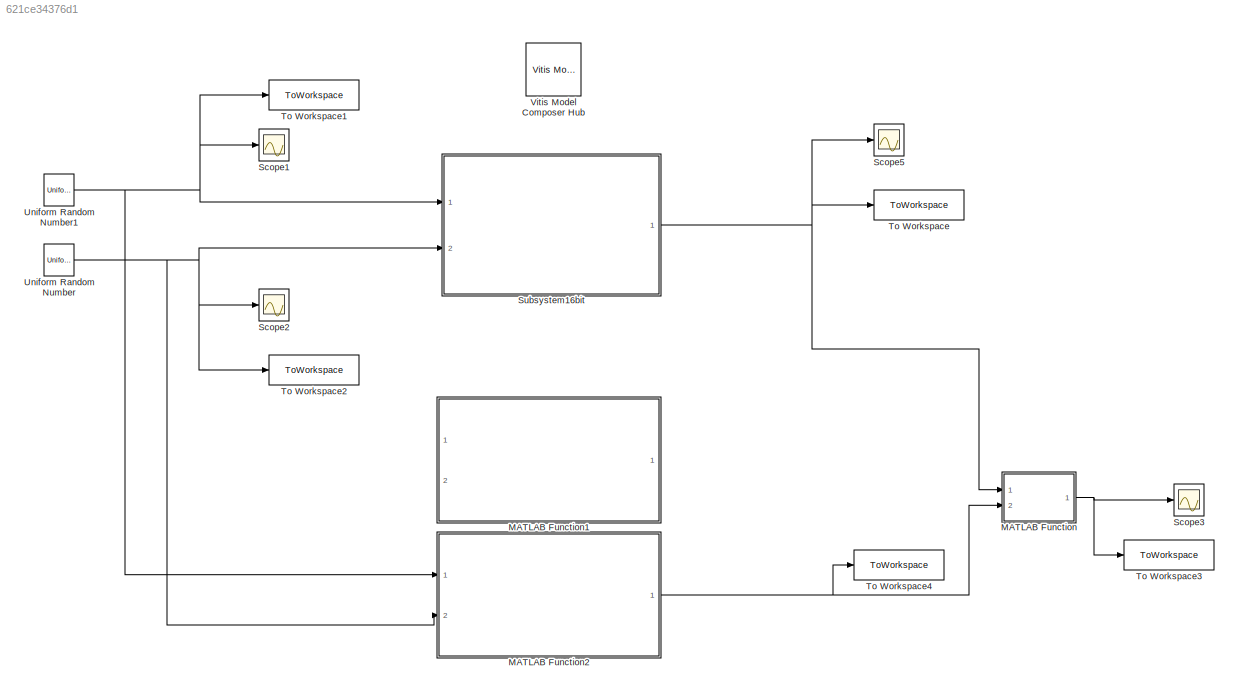
MODEL slx_621ce34376d1
KIND model
CONFIG AbsTol = auto
CONFIG EnableMultiTasking = off
CONFIG FixedStep = auto
CONFIG MaxStep = auto
CONFIG MinStep = auto
CONFIG RelTol = 1e-3
CONFIG SampleTimeConstraint = Unconstrained
CONFIG SolverName = VariableStepAuto
CONFIG StartTime = 0.0
CONFIG StopTime = 99
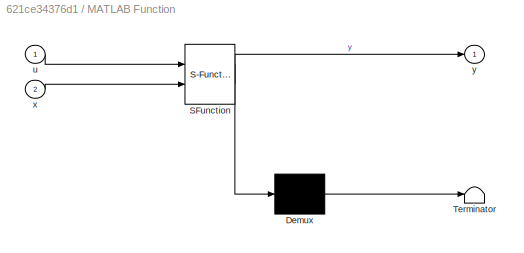
BLOCK [SubSystem] MATLAB Function
  ErrorFcn = Stateflow.Translate.translate
  PermitHierarchicalResolution = ExplicitOnly
  Ports = [2, 1]
  RequestExecContextInheritance = off
  SFBlockType = MATLAB Function
  TreatAsAtomicUnit = on
BLOCK [Demux] MATLAB Function/ Demux 
  Outputs = 1
  Ports = [1, 1]
BLOCK [S-Function] MATLAB Function/ SFunction 
  EnableBusSupport = on
  FunctionName = sf_sfun
  PortCounts = [2 2]
  Ports = [2, 2]
  SFcnIsStateOwnerBlock = off
  SFunctionDeploymentMode = off
  Tag = Stateflow S-Function 2
BLOCK [Terminator] MATLAB Function/ Terminator 
BLOCK [Inport] MATLAB Function/u
BLOCK [Inport] MATLAB Function/x
  Port = 2
BLOCK [Outport] MATLAB Function/y
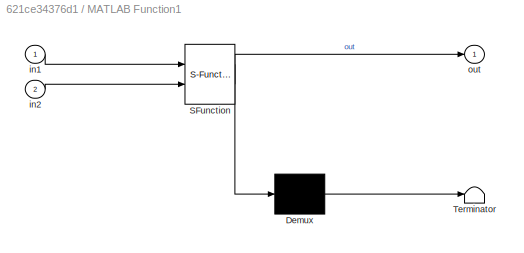
BLOCK [SubSystem] MATLAB Function1
  Commented = on
  ErrorFcn = Stateflow.Translate.translate
  PermitHierarchicalResolution = ExplicitOnly
  Ports = [2, 1]
  RequestExecContextInheritance = off
  SFBlockType = MATLAB Function
  TreatAsAtomicUnit = on
BLOCK [Demux] MATLAB Function1/ Demux 
  Outputs = 1
  Ports = [1, 1]
BLOCK [S-Function] MATLAB Function1/ SFunction 
  EnableBusSupport = on
  FunctionName = sf_sfun
  PortCounts = [2 2]
  Ports = [2, 2]
  SFcnIsStateOwnerBlock = off
  SFunctionDeploymentMode = off
  Tag = Stateflow S-Function 1
BLOCK [Terminator] MATLAB Function1/ Terminator 
BLOCK [Inport] MATLAB Function1/in1
BLOCK [Inport] MATLAB Function1/in2
  Port = 2
BLOCK [Outport] MATLAB Function1/out
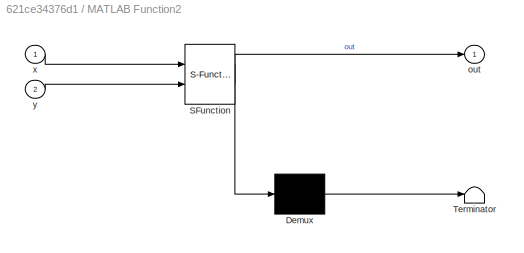
BLOCK [SubSystem] MATLAB Function2
  ErrorFcn = Stateflow.Translate.translate
  PermitHierarchicalResolution = ExplicitOnly
  Ports = [2, 1]
  RequestExecContextInheritance = off
  SFBlockType = MATLAB Function
  TreatAsAtomicUnit = on
BLOCK [Demux] MATLAB Function2/ Demux 
  Outputs = 1
  Ports = [1, 1]
BLOCK [S-Function] MATLAB Function2/ SFunction 
  EnableBusSupport = on
  FunctionName = sf_sfun
  PortCounts = [2 2]
  Ports = [2, 2]
  SFcnIsStateOwnerBlock = off
  SFunctionDeploymentMode = off
  Tag = Stateflow S-Function 3
BLOCK [Terminator] MATLAB Function2/ Terminator 
BLOCK [Outport] MATLAB Function2/out
BLOCK [Inport] MATLAB Function2/x
BLOCK [Inport] MATLAB Function2/y
  Port = 2
BLOCK [Scope] Scope1
  Floating = off
  NumInputPorts = 1
  Ports = [1]
  ScopeSpecificationString = Simulink.scopes.TimeScopeBlockCfg('CurrentConfiguration', extmgr.ConfigurationSet(extmgr.Configuration('Core','General UI',true),extmgr.Configuration('Core','Source UI',true),extmgr.Configuration('Sources','WiredSimulink',true,'DataLoggingVariableName','ScopeData1'),extmgr.Configuration('Visuals','Time Domain',true,'SerializedDisplays',{struct('MinYLimReal','-1.24415','MaxYLimReal','1.23259','YLab...<+1488ch>
BLOCK [Scope] Scope2
  Floating = off
  NumInputPorts = 1
  Ports = [1]
  ScopeSpecificationString = Simulink.scopes.TimeScopeBlockCfg('CurrentConfiguration', extmgr.ConfigurationSet(extmgr.Configuration('Core','General UI',true),extmgr.Configuration('Core','Source UI',true),extmgr.Configuration('Sources','WiredSimulink',true),extmgr.Configuration('Visuals','Time Domain',true,'SerializedDisplays',{struct('MinYLimReal','-1.24312','MaxYLimReal','1.24803','YLabelReal','','MinYLimMag','0.00000','MaxY...<+1411ch>
BLOCK [Scope] Scope3
  Floating = off
  NumInputPorts = 1
  Ports = [1]
  ScopeSpecificationString = Simulink.scopes.TimeScopeBlockCfg('CurrentConfiguration', extmgr.ConfigurationSet(extmgr.Configuration('Core','General UI',true),extmgr.Configuration('Core','Source UI',true),extmgr.Configuration('Sources','WiredSimulink',true,'DataLoggingVariableName','ScopeData2'),extmgr.Configuration('Visuals','Time Domain',true,'SerializedDisplays',{struct('MinYLimReal','-0.01042','MaxYLimReal','0.09375','YLab...<+1447ch>
BLOCK [Scope] Scope5
  Floating = off
  NumInputPorts = 1
  Ports = [1]
  ScopeSpecificationString = Simulink.scopes.TimeScopeBlockCfg('CurrentConfiguration', extmgr.ConfigurationSet(extmgr.Configuration('Core','General UI',true),extmgr.Configuration('Core','Source UI',true),extmgr.Configuration('Sources','WiredSimulink',true,'DataLoggingVariableName','ScopeData4'),extmgr.Configuration('Visuals','Time Domain',true,'SerializedDisplays',{struct('MinYLimReal','-0.12011','MaxYLimReal','1.09863','YLab...<+1480ch>
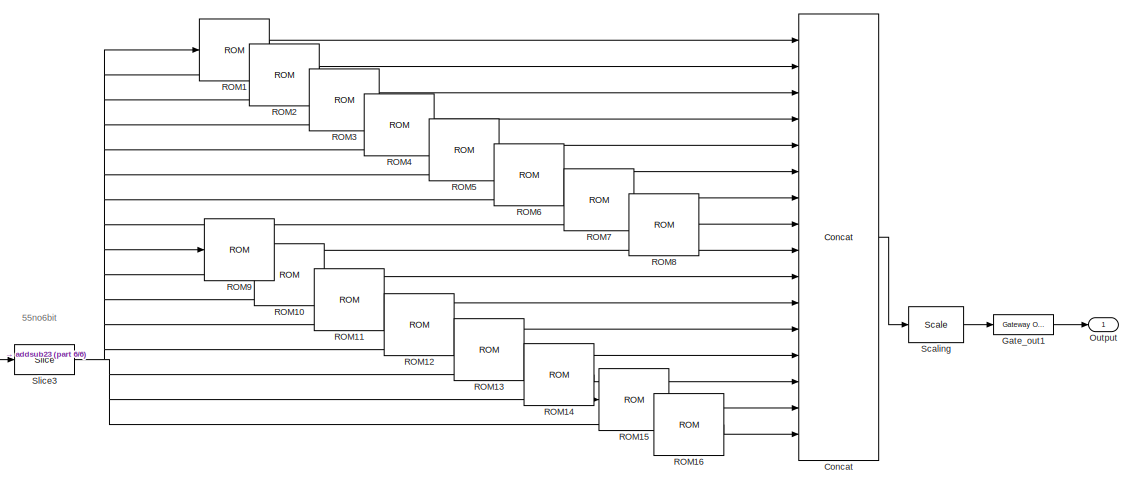
[diagram: Subsystem16bit - part 1/6, top right region]
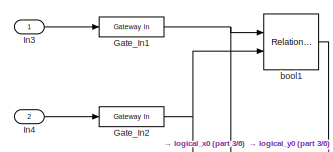
[diagram: Subsystem16bit - part 2/6, top left region]
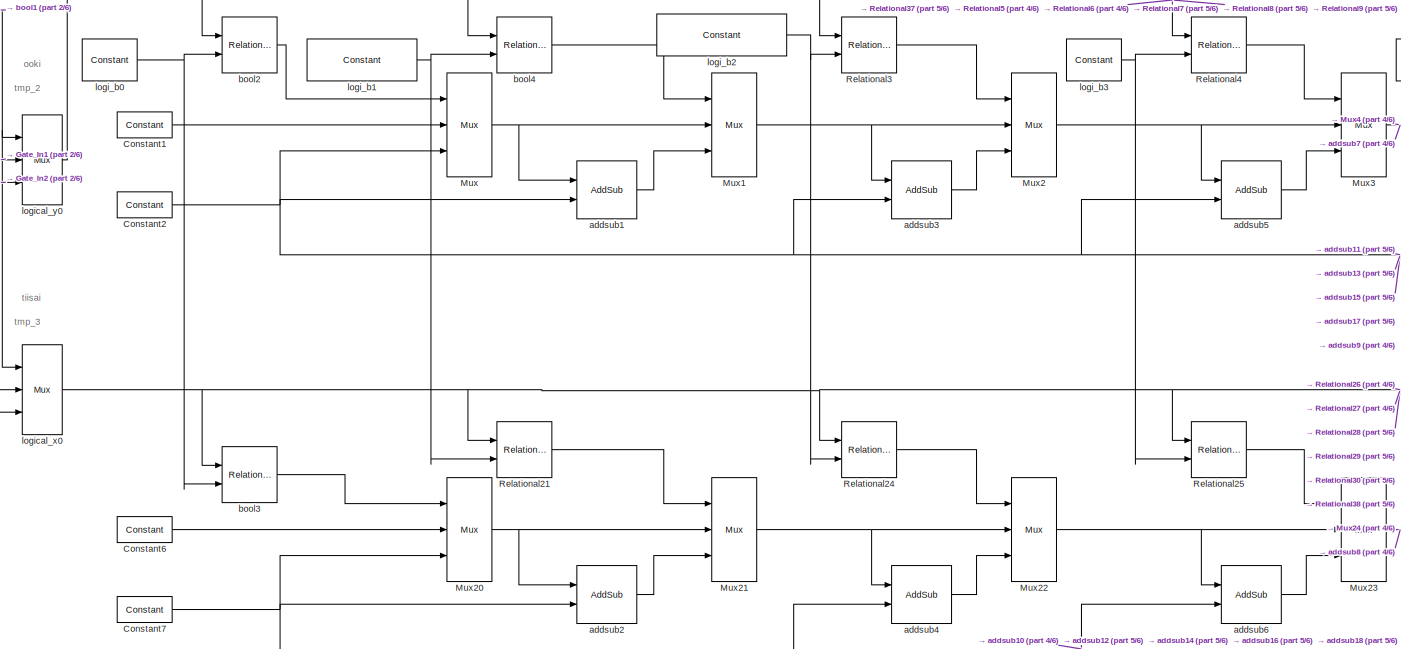
[diagram: Subsystem16bit - part 3/6, left side, full height]
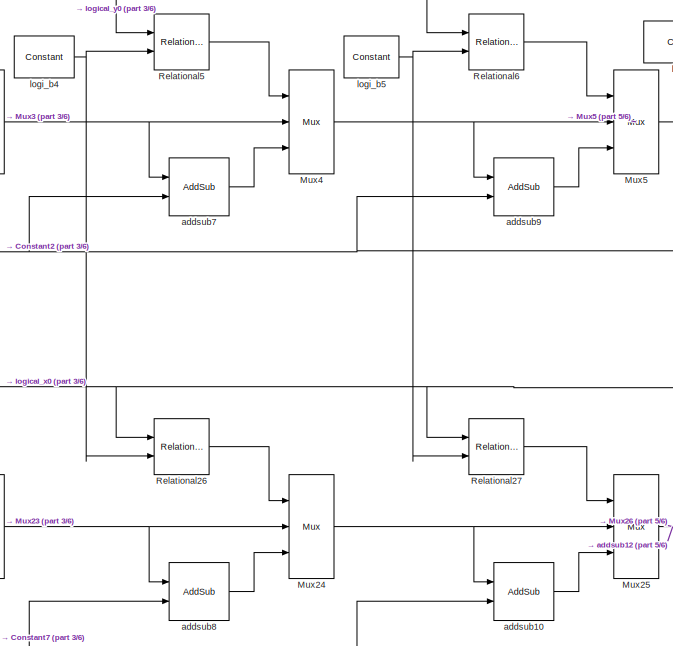
[diagram: Subsystem16bit - part 4/6, middle left region]
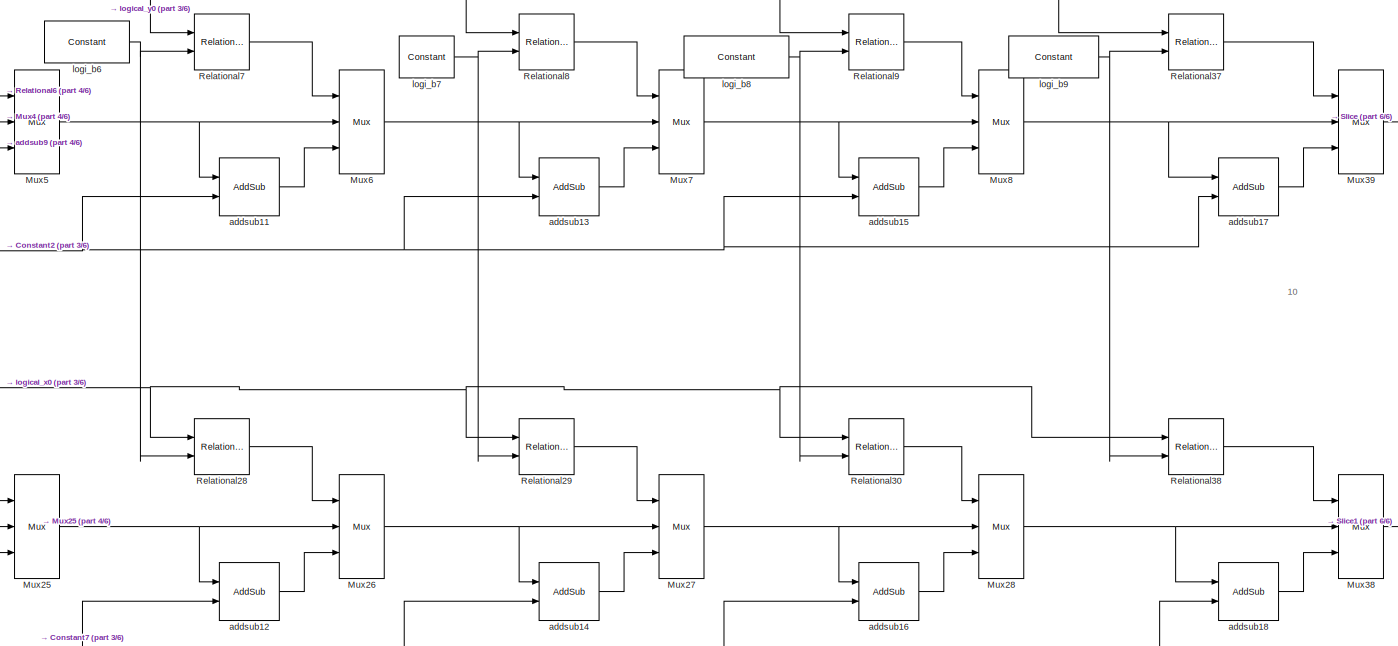
[diagram: Subsystem16bit - part 5/6, central region]
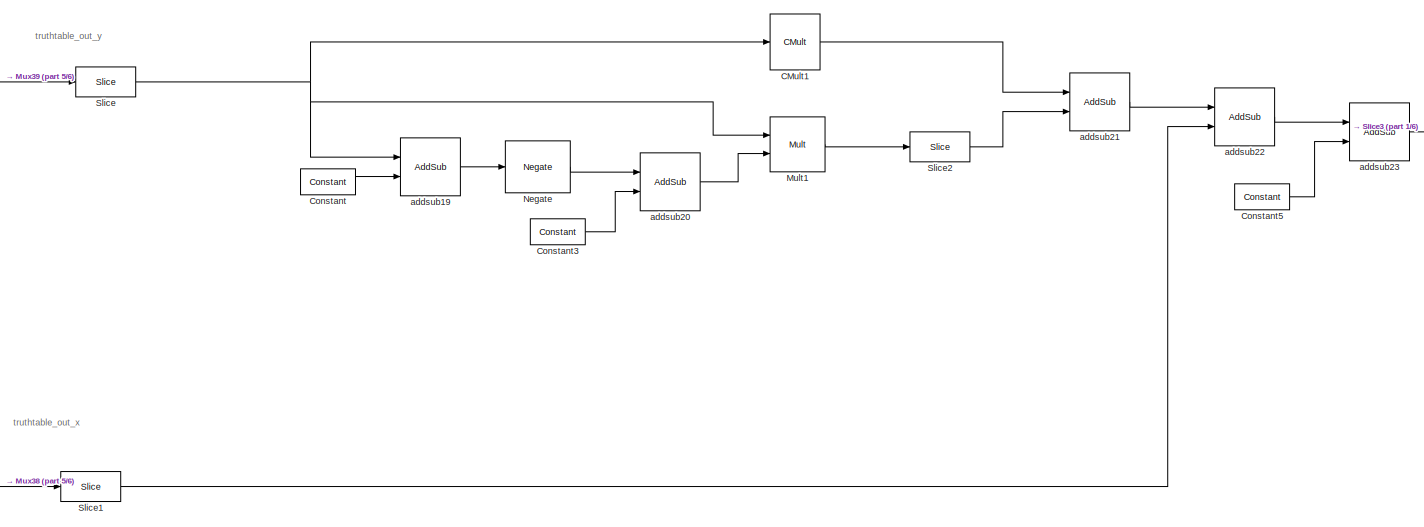
[diagram: Subsystem16bit - part 6/6, middle right region]
BLOCK [SubSystem] Subsystem16bit
  Ports = [2, 1]
  RequestExecContextInheritance = off
BLOCK [Reference] Subsystem16bit/CMult1  REF=hdlBasic/CMult
  Ports = [1, 1]
  SourceBlock = hdlBasic/CMult
  SourceType = Constant Multiplier Block
BLOCK [Reference] Subsystem16bit/Concat  REF=hdlBasic/Concat
  Ports = [16, 1]
  SourceBlock = hdlBasic/Concat
  SourceType = Bus Concatenator Block
BLOCK [Reference] Subsystem16bit/Constant  REF=hdlBasic/Constant
  Ports = [0, 1]
  SourceBlock = hdlBasic/Constant
  SourceType = Constant Block Block
BLOCK [Reference] Subsystem16bit/Constant1  REF=hdlBasic/Constant
  Ports = [0, 1]
  SourceBlock = hdlBasic/Constant
  SourceType = Constant Block Block
BLOCK [Reference] Subsystem16bit/Constant2  REF=hdlBasic/Constant
  Ports = [0, 1]
  SourceBlock = hdlBasic/Constant
  SourceType = Constant Block Block
BLOCK [Reference] Subsystem16bit/Constant3  REF=hdlBasic/Constant
  Ports = [0, 1]
  SourceBlock = hdlBasic/Constant
  SourceType = Constant Block Block
BLOCK [Reference] Subsystem16bit/Constant5  REF=hdlBasic/Constant
  Ports = [0, 1]
  SourceBlock = hdlBasic/Constant
  SourceType = Constant Block Block
BLOCK [Reference] Subsystem16bit/Constant6  REF=hdlBasic/Constant
  Ports = [0, 1]
  SourceBlock = hdlBasic/Constant
  SourceType = Constant Block Block
BLOCK [Reference] Subsystem16bit/Constant7  REF=hdlBasic/Constant
  Ports = [0, 1]
  SourceBlock = hdlBasic/Constant
  SourceType = Constant Block Block
BLOCK [Reference] Subsystem16bit/Gate_In1  REF=hdlBasic/Gateway In
  Ports = [1, 1]
  SourceBlock = hdlBasic/Gateway In
  SourceType = Gateway In Block
BLOCK [Reference] Subsystem16bit/Gate_In2  REF=hdlBasic/Gateway In
  Ports = [1, 1]
  SourceBlock = hdlBasic/Gateway In
  SourceType = Gateway In Block
BLOCK [Reference] Subsystem16bit/Gate_out1  REF=hdlBasic/Gateway Out
  Ports = [1, 1]
  SourceBlock = hdlBasic/Gateway Out
  SourceType = Gateway Out Block
BLOCK [Inport] Subsystem16bit/In3
BLOCK [Inport] Subsystem16bit/In4
  Port = 2
BLOCK [Reference] Subsystem16bit/Mult1  REF=hdlBasic/Mult
  Ports = [2, 1]
  SourceBlock = hdlBasic/Mult
  SourceType = Multiplier Block
BLOCK [Reference] Subsystem16bit/Mux  REF=hdlBasic/Mux
  Ports = [3, 1]
  SourceBlock = hdlBasic/Mux
  SourceType = Bus Multiplexer Block
BLOCK [Reference] Subsystem16bit/Mux1  REF=hdlBasic/Mux
  Ports = [3, 1]
  SourceBlock = hdlBasic/Mux
  SourceType = Bus Multiplexer Block
BLOCK [Reference] Subsystem16bit/Mux2  REF=hdlBasic/Mux
  Ports = [3, 1]
  SourceBlock = hdlBasic/Mux
  SourceType = Bus Multiplexer Block
BLOCK [Reference] Subsystem16bit/Mux20  REF=hdlBasic/Mux
  Ports = [3, 1]
  SourceBlock = hdlBasic/Mux
  SourceType = Bus Multiplexer Block
BLOCK [Reference] Subsystem16bit/Mux21  REF=hdlBasic/Mux
  Ports = [3, 1]
  SourceBlock = hdlBasic/Mux
  SourceType = Bus Multiplexer Block
BLOCK [Reference] Subsystem16bit/Mux22  REF=hdlBasic/Mux
  Ports = [3, 1]
  SourceBlock = hdlBasic/Mux
  SourceType = Bus Multiplexer Block
BLOCK [Reference] Subsystem16bit/Mux23  REF=hdlBasic/Mux
  Ports = [3, 1]
  SourceBlock = hdlBasic/Mux
  SourceType = Bus Multiplexer Block
BLOCK [Reference] Subsystem16bit/Mux24  REF=hdlBasic/Mux
  Ports = [3, 1]
  SourceBlock = hdlBasic/Mux
  SourceType = Bus Multiplexer Block
BLOCK [Reference] Subsystem16bit/Mux25  REF=hdlBasic/Mux
  Ports = [3, 1]
  SourceBlock = hdlBasic/Mux
  SourceType = Bus Multiplexer Block
BLOCK [Reference] Subsystem16bit/Mux26  REF=hdlBasic/Mux
  Ports = [3, 1]
  SourceBlock = hdlBasic/Mux
  SourceType = Bus Multiplexer Block
BLOCK [Reference] Subsystem16bit/Mux27  REF=hdlBasic/Mux
  Ports = [3, 1]
  SourceBlock = hdlBasic/Mux
  SourceType = Bus Multiplexer Block
BLOCK [Reference] Subsystem16bit/Mux28  REF=hdlBasic/Mux
  Ports = [3, 1]
  SourceBlock = hdlBasic/Mux
  SourceType = Bus Multiplexer Block
BLOCK [Reference] Subsystem16bit/Mux3  REF=hdlBasic/Mux
  Ports = [3, 1]
  SourceBlock = hdlBasic/Mux
  SourceType = Bus Multiplexer Block
BLOCK [Reference] Subsystem16bit/Mux38  REF=hdlBasic/Mux
  Ports = [3, 1]
  SourceBlock = hdlBasic/Mux
  SourceType = Bus Multiplexer Block
BLOCK [Reference] Subsystem16bit/Mux39  REF=hdlBasic/Mux
  Ports = [3, 1]
  SourceBlock = hdlBasic/Mux
  SourceType = Bus Multiplexer Block
BLOCK [Reference] Subsystem16bit/Mux4  REF=hdlBasic/Mux
  Ports = [3, 1]
  SourceBlock = hdlBasic/Mux
  SourceType = Bus Multiplexer Block
BLOCK [Reference] Subsystem16bit/Mux5  REF=hdlBasic/Mux
  Ports = [3, 1]
  SourceBlock = hdlBasic/Mux
  SourceType = Bus Multiplexer Block
BLOCK [Reference] Subsystem16bit/Mux6  REF=hdlBasic/Mux
  Ports = [3, 1]
  SourceBlock = hdlBasic/Mux
  SourceType = Bus Multiplexer Block
BLOCK [Reference] Subsystem16bit/Mux7  REF=hdlBasic/Mux
  Ports = [3, 1]
  SourceBlock = hdlBasic/Mux
  SourceType = Bus Multiplexer Block
BLOCK [Reference] Subsystem16bit/Mux8  REF=hdlBasic/Mux
  Ports = [3, 1]
  SourceBlock = hdlBasic/Mux
  SourceType = Bus Multiplexer Block
BLOCK [Reference] Subsystem16bit/Negate  REF=hdlBasic/Negate
  Ports = [1, 1]
  SourceBlock = hdlBasic/Negate
  SourceType = Negate Block Block
BLOCK [Outport] Subsystem16bit/Output
BLOCK [Reference] Subsystem16bit/ROM1  REF=hdlBasic/ROM
  Ports = [1, 1]
  SourceBlock = hdlBasic/ROM
  SourceType = Single Port Read-Only Memory Block
BLOCK [Reference] Subsystem16bit/ROM10  REF=hdlBasic/ROM
  Ports = [1, 1]
  SourceBlock = hdlBasic/ROM
  SourceType = Single Port Read-Only Memory Block
BLOCK [Reference] Subsystem16bit/ROM11  REF=hdlBasic/ROM
  Ports = [1, 1]
  SourceBlock = hdlBasic/ROM
  SourceType = Single Port Read-Only Memory Block
BLOCK [Reference] Subsystem16bit/ROM12  REF=hdlBasic/ROM
  Ports = [1, 1]
  SourceBlock = hdlBasic/ROM
  SourceType = Single Port Read-Only Memory Block
BLOCK [Reference] Subsystem16bit/ROM13  REF=hdlBasic/ROM
  Ports = [1, 1]
  SourceBlock = hdlBasic/ROM
  SourceType = Single Port Read-Only Memory Block
BLOCK [Reference] Subsystem16bit/ROM14  REF=hdlBasic/ROM
  Ports = [1, 1]
  SourceBlock = hdlBasic/ROM
  SourceType = Single Port Read-Only Memory Block
BLOCK [Reference] Subsystem16bit/ROM15  REF=hdlBasic/ROM
  Ports = [1, 1]
  SourceBlock = hdlBasic/ROM
  SourceType = Single Port Read-Only Memory Block
BLOCK [Reference] Subsystem16bit/ROM16  REF=hdlBasic/ROM
  Ports = [1, 1]
  SourceBlock = hdlBasic/ROM
  SourceType = Single Port Read-Only Memory Block
BLOCK [Reference] Subsystem16bit/ROM2  REF=hdlBasic/ROM
  Ports = [1, 1]
  SourceBlock = hdlBasic/ROM
  SourceType = Single Port Read-Only Memory Block
BLOCK [Reference] Subsystem16bit/ROM3  REF=hdlBasic/ROM
  Ports = [1, 1]
  SourceBlock = hdlBasic/ROM
  SourceType = Single Port Read-Only Memory Block
BLOCK [Reference] Subsystem16bit/ROM4  REF=hdlBasic/ROM
  Ports = [1, 1]
  SourceBlock = hdlBasic/ROM
  SourceType = Single Port Read-Only Memory Block
BLOCK [Reference] Subsystem16bit/ROM5  REF=hdlBasic/ROM
  Ports = [1, 1]
  SourceBlock = hdlBasic/ROM
  SourceType = Single Port Read-Only Memory Block
BLOCK [Reference] Subsystem16bit/ROM6  REF=hdlBasic/ROM
  Ports = [1, 1]
  SourceBlock = hdlBasic/ROM
  SourceType = Single Port Read-Only Memory Block
BLOCK [Reference] Subsystem16bit/ROM7  REF=hdlBasic/ROM
  Ports = [1, 1]
  SourceBlock = hdlBasic/ROM
  SourceType = Single Port Read-Only Memory Block
BLOCK [Reference] Subsystem16bit/ROM8  REF=hdlBasic/ROM
  Ports = [1, 1]
  SourceBlock = hdlBasic/ROM
  SourceType = Single Port Read-Only Memory Block
BLOCK [Reference] Subsystem16bit/ROM9  REF=hdlBasic/ROM
  Ports = [1, 1]
  SourceBlock = hdlBasic/ROM
  SourceType = Single Port Read-Only Memory Block
BLOCK [Reference] Subsystem16bit/Relational21  REF=hdlBasic/Relational
  Ports = [2, 1]
  SourceBlock = hdlBasic/Relational
  SourceType = Arithmetic Relational Operator Block
BLOCK [Reference] Subsystem16bit/Relational24  REF=hdlBasic/Relational
  Ports = [2, 1]
  SourceBlock = hdlBasic/Relational
  SourceType = Arithmetic Relational Operator Block
BLOCK [Reference] Subsystem16bit/Relational25  REF=hdlBasic/Relational
  Ports = [2, 1]
  SourceBlock = hdlBasic/Relational
  SourceType = Arithmetic Relational Operator Block
BLOCK [Reference] Subsystem16bit/Relational26  REF=hdlBasic/Relational
  Ports = [2, 1]
  SourceBlock = hdlBasic/Relational
  SourceType = Arithmetic Relational Operator Block
BLOCK [Reference] Subsystem16bit/Relational27  REF=hdlBasic/Relational
  Ports = [2, 1]
  SourceBlock = hdlBasic/Relational
  SourceType = Arithmetic Relational Operator Block
BLOCK [Reference] Subsystem16bit/Relational28  REF=hdlBasic/Relational
  Ports = [2, 1]
  SourceBlock = hdlBasic/Relational
  SourceType = Arithmetic Relational Operator Block
BLOCK [Reference] Subsystem16bit/Relational29  REF=hdlBasic/Relational
  Ports = [2, 1]
  SourceBlock = hdlBasic/Relational
  SourceType = Arithmetic Relational Operator Block
BLOCK [Reference] Subsystem16bit/Relational3  REF=hdlBasic/Relational
  Ports = [2, 1]
  SourceBlock = hdlBasic/Relational
  SourceType = Arithmetic Relational Operator Block
BLOCK [Reference] Subsystem16bit/Relational30  REF=hdlBasic/Relational
  Ports = [2, 1]
  SourceBlock = hdlBasic/Relational
  SourceType = Arithmetic Relational Operator Block
BLOCK [Reference] Subsystem16bit/Relational37  REF=hdlBasic/Relational
  Ports = [2, 1]
  SourceBlock = hdlBasic/Relational
  SourceType = Arithmetic Relational Operator Block
BLOCK [Reference] Subsystem16bit/Relational38  REF=hdlBasic/Relational
  Ports = [2, 1]
  SourceBlock = hdlBasic/Relational
  SourceType = Arithmetic Relational Operator Block
BLOCK [Reference] Subsystem16bit/Relational4  REF=hdlBasic/Relational
  Ports = [2, 1]
  SourceBlock = hdlBasic/Relational
  SourceType = Arithmetic Relational Operator Block
BLOCK [Reference] Subsystem16bit/Relational5  REF=hdlBasic/Relational
  Ports = [2, 1]
  SourceBlock = hdlBasic/Relational
  SourceType = Arithmetic Relational Operator Block
BLOCK [Reference] Subsystem16bit/Relational6  REF=hdlBasic/Relational
  Ports = [2, 1]
  SourceBlock = hdlBasic/Relational
  SourceType = Arithmetic Relational Operator Block
BLOCK [Reference] Subsystem16bit/Relational7  REF=hdlBasic/Relational
  Ports = [2, 1]
  SourceBlock = hdlBasic/Relational
  SourceType = Arithmetic Relational Operator Block
BLOCK [Reference] Subsystem16bit/Relational8  REF=hdlBasic/Relational
  Ports = [2, 1]
  SourceBlock = hdlBasic/Relational
  SourceType = Arithmetic Relational Operator Block
BLOCK [Reference] Subsystem16bit/Relational9  REF=hdlBasic/Relational
  Ports = [2, 1]
  SourceBlock = hdlBasic/Relational
  SourceType = Arithmetic Relational Operator Block
BLOCK [Reference] Subsystem16bit/Scaling  REF=hdlBasic/Scale
  Ports = [1, 1]
  SourceBlock = hdlBasic/Scale
  SourceType = Input Scaler Block
BLOCK [Reference] Subsystem16bit/Slice  REF=hdlBasic/Slice
  Ports = [1, 1]
  SourceBlock = hdlBasic/Slice
  SourceType = Bit Slice Extractor Block
BLOCK [Reference] Subsystem16bit/Slice1  REF=hdlBasic/Slice
  Ports = [1, 1]
  SourceBlock = hdlBasic/Slice
  SourceType = Bit Slice Extractor Block
BLOCK [Reference] Subsystem16bit/Slice2  REF=hdlBasic/Slice
  Ports = [1, 1]
  SourceBlock = hdlBasic/Slice
  SourceType = Bit Slice Extractor Block
BLOCK [Reference] Subsystem16bit/Slice3  REF=hdlBasic/Slice
  Ports = [1, 1]
  SourceBlock = hdlBasic/Slice
  SourceType = Bit Slice Extractor Block
BLOCK [Reference] Subsystem16bit/addsub1  REF=hdlBasic/AddSub
  Ports = [2, 1]
  SourceBlock = hdlBasic/AddSub
  SourceType = Adder/Subtracter Block
BLOCK [Reference] Subsystem16bit/addsub10  REF=hdlBasic/AddSub
  Ports = [2, 1]
  SourceBlock = hdlBasic/AddSub
  SourceType = Adder/Subtracter Block
BLOCK [Reference] Subsystem16bit/addsub11  REF=hdlBasic/AddSub
  Ports = [2, 1]
  SourceBlock = hdlBasic/AddSub
  SourceType = Adder/Subtracter Block
BLOCK [Reference] Subsystem16bit/addsub12  REF=hdlBasic/AddSub
  Ports = [2, 1]
  SourceBlock = hdlBasic/AddSub
  SourceType = Adder/Subtracter Block
BLOCK [Reference] Subsystem16bit/addsub13  REF=hdlBasic/AddSub
  Ports = [2, 1]
  SourceBlock = hdlBasic/AddSub
  SourceType = Adder/Subtracter Block
BLOCK [Reference] Subsystem16bit/addsub14  REF=hdlBasic/AddSub
  Ports = [2, 1]
  SourceBlock = hdlBasic/AddSub
  SourceType = Adder/Subtracter Block
BLOCK [Reference] Subsystem16bit/addsub15  REF=hdlBasic/AddSub
  Ports = [2, 1]
  SourceBlock = hdlBasic/AddSub
  SourceType = Adder/Subtracter Block
BLOCK [Reference] Subsystem16bit/addsub16  REF=hdlBasic/AddSub
  Ports = [2, 1]
  SourceBlock = hdlBasic/AddSub
  SourceType = Adder/Subtracter Block
BLOCK [Reference] Subsystem16bit/addsub17  REF=hdlBasic/AddSub
  Ports = [2, 1]
  SourceBlock = hdlBasic/AddSub
  SourceType = Adder/Subtracter Block
BLOCK [Reference] Subsystem16bit/addsub18  REF=hdlBasic/AddSub
  Ports = [2, 1]
  SourceBlock = hdlBasic/AddSub
  SourceType = Adder/Subtracter Block
BLOCK [Reference] Subsystem16bit/addsub19  REF=hdlBasic/AddSub
  Ports = [2, 1]
  SourceBlock = hdlBasic/AddSub
  SourceType = Adder/Subtracter Block
BLOCK [Reference] Subsystem16bit/addsub2  REF=hdlBasic/AddSub
  Ports = [2, 1]
  SourceBlock = hdlBasic/AddSub
  SourceType = Adder/Subtracter Block
BLOCK [Reference] Subsystem16bit/addsub20  REF=hdlBasic/AddSub
  Ports = [2, 1]
  SourceBlock = hdlBasic/AddSub
  SourceType = Adder/Subtracter Block
BLOCK [Reference] Subsystem16bit/addsub21  REF=hdlBasic/AddSub
  Ports = [2, 1]
  SourceBlock = hdlBasic/AddSub
  SourceType = Adder/Subtracter Block
BLOCK [Reference] Subsystem16bit/addsub22  REF=hdlBasic/AddSub
  Ports = [2, 1]
  SourceBlock = hdlBasic/AddSub
  SourceType = Adder/Subtracter Block
BLOCK [Reference] Subsystem16bit/addsub23  REF=hdlBasic/AddSub
  Ports = [2, 1]
  SourceBlock = hdlBasic/AddSub
  SourceType = Adder/Subtracter Block
BLOCK [Reference] Subsystem16bit/addsub3  REF=hdlBasic/AddSub
  Ports = [2, 1]
  SourceBlock = hdlBasic/AddSub
  SourceType = Adder/Subtracter Block
BLOCK [Reference] Subsystem16bit/addsub4  REF=hdlBasic/AddSub
  Ports = [2, 1]
  SourceBlock = hdlBasic/AddSub
  SourceType = Adder/Subtracter Block
BLOCK [Reference] Subsystem16bit/addsub5  REF=hdlBasic/AddSub
  Ports = [2, 1]
  SourceBlock = hdlBasic/AddSub
  SourceType = Adder/Subtracter Block
BLOCK [Reference] Subsystem16bit/addsub6  REF=hdlBasic/AddSub
  Ports = [2, 1]
  SourceBlock = hdlBasic/AddSub
  SourceType = Adder/Subtracter Block
BLOCK [Reference] Subsystem16bit/addsub7  REF=hdlBasic/AddSub
  Ports = [2, 1]
  SourceBlock = hdlBasic/AddSub
  SourceType = Adder/Subtracter Block
BLOCK [Reference] Subsystem16bit/addsub8  REF=hdlBasic/AddSub
  Ports = [2, 1]
  SourceBlock = hdlBasic/AddSub
  SourceType = Adder/Subtracter Block
BLOCK [Reference] Subsystem16bit/addsub9  REF=hdlBasic/AddSub
  Ports = [2, 1]
  SourceBlock = hdlBasic/AddSub
  SourceType = Adder/Subtracter Block
BLOCK [Reference] Subsystem16bit/bool1  REF=hdlBasic/Relational
  Ports = [2, 1]
  SourceBlock = hdlBasic/Relational
  SourceType = Arithmetic Relational Operator Block
BLOCK [Reference] Subsystem16bit/bool2  REF=hdlBasic/Relational
  Ports = [2, 1]
  SourceBlock = hdlBasic/Relational
  SourceType = Arithmetic Relational Operator Block
BLOCK [Reference] Subsystem16bit/bool3  REF=hdlBasic/Relational
  Ports = [2, 1]
  SourceBlock = hdlBasic/Relational
  SourceType = Arithmetic Relational Operator Block
BLOCK [Reference] Subsystem16bit/bool4  REF=hdlBasic/Relational
  Ports = [2, 1]
  SourceBlock = hdlBasic/Relational
  SourceType = Arithmetic Relational Operator Block
BLOCK [Reference] Subsystem16bit/logi_b0  REF=hdlBasic/Constant
  Ports = [0, 1]
  SourceBlock = hdlBasic/Constant
  SourceType = Constant Block Block
BLOCK [Reference] Subsystem16bit/logi_b1  REF=hdlBasic/Constant
  Ports = [0, 1]
  SourceBlock = hdlBasic/Constant
  SourceType = Constant Block Block
BLOCK [Reference] Subsystem16bit/logi_b2  REF=hdlBasic/Constant
  Ports = [0, 1]
  SourceBlock = hdlBasic/Constant
  SourceType = Constant Block Block
BLOCK [Reference] Subsystem16bit/logi_b3  REF=hdlBasic/Constant
  Ports = [0, 1]
  SourceBlock = hdlBasic/Constant
  SourceType = Constant Block Block
BLOCK [Reference] Subsystem16bit/logi_b4  REF=hdlBasic/Constant
  Ports = [0, 1]
  SourceBlock = hdlBasic/Constant
  SourceType = Constant Block Block
BLOCK [Reference] Subsystem16bit/logi_b5  REF=hdlBasic/Constant
  Ports = [0, 1]
  SourceBlock = hdlBasic/Constant
  SourceType = Constant Block Block
BLOCK [Reference] Subsystem16bit/logi_b6  REF=hdlBasic/Constant
  Ports = [0, 1]
  SourceBlock = hdlBasic/Constant
  SourceType = Constant Block Block
BLOCK [Reference] Subsystem16bit/logi_b7  REF=hdlBasic/Constant
  Ports = [0, 1]
  SourceBlock = hdlBasic/Constant
  SourceType = Constant Block Block
BLOCK [Reference] Subsystem16bit/logi_b8  REF=hdlBasic/Constant
  Ports = [0, 1]
  SourceBlock = hdlBasic/Constant
  SourceType = Constant Block Block
BLOCK [Reference] Subsystem16bit/logi_b9  REF=hdlBasic/Constant
  Ports = [0, 1]
  SourceBlock = hdlBasic/Constant
  SourceType = Constant Block Block
BLOCK [Reference] Subsystem16bit/logical_x0  REF=hdlBasic/Mux
  Ports = [3, 1]
  SourceBlock = hdlBasic/Mux
  SourceType = Bus Multiplexer Block
BLOCK [Reference] Subsystem16bit/logical_y0  REF=hdlBasic/Mux
  Ports = [3, 1]
  SourceBlock = hdlBasic/Mux
  SourceType = Bus Multiplexer Block
BLOCK [ToWorkspace] To Workspace
  FixptAsFi = on
  MaxDataPoints = inf
  Ports = [1]
  SampleTime = 1
  SaveFormat = Structure With Time
  VariableName = outPCA
BLOCK [ToWorkspace] To Workspace1
  FixptAsFi = on
  MaxDataPoints = inf
  Ports = [1]
  SampleTime = -1
  SaveFormat = Structure With Time
  VariableName = IN1
BLOCK [ToWorkspace] To Workspace2
  FixptAsFi = on
  MaxDataPoints = inf
  Ports = [1]
  SampleTime = -1
  SaveFormat = Structure With Time
  VariableName = IN2
BLOCK [ToWorkspace] To Workspace3
  FixptAsFi = on
  MaxDataPoints = inf
  Ports = [1]
  SampleTime = 1
  SaveFormat = Structure With Time
  VariableName = mse
BLOCK [ToWorkspace] To Workspace4
  FixptAsFi = on
  MaxDataPoints = inf
  Ports = [1]
  SampleTime = 1
  SaveFormat = Structure With Time
  VariableName = outGOLD
BLOCK [UniformRandomNumber] Uniform Random Number
  Maximum = 0.9
  Minimum = -0.9
  SampleTime = 1
BLOCK [UniformRandomNumber] Uniform Random Number1
  Maximum = 0.9
  Minimum = -0.9
  SampleTime = 1
  Seed = 1
BLOCK [Reference] Vitis Model Composer Hub  REF=vmcUtilities/Vitis Model Composer Hub
  Ports = []
  SourceBlock = vmcUtilities/Vitis Model Composer Hub
  SourceType = Implementation
  Tag = genX
  UserDataPersistent = on
ANNOTATION Subsystem16bit: 55no6bit
ANNOTATION Subsystem16bit: 10
ANNOTATION Subsystem16bit: ooki
ANNOTATION Subsystem16bit: tiisai
ANNOTATION Subsystem16bit: tmp_2
ANNOTATION Subsystem16bit: tmp_3
ANNOTATION Subsystem16bit: truthtable_out_x
ANNOTATION Subsystem16bit: truthtable_out_y
NET MATLAB Function2:1 -> MATLAB Function:2, To Workspace4:1
NET MATLAB Function:1 -> Scope3:1, To Workspace3:1
LINE Subsystem16bit/CMult1:1 -> Subsystem16bit/addsub21:1
LINE Subsystem16bit/Concat:1 -> Subsystem16bit/Scaling:1
LINE Subsystem16bit/Constant1:1 -> Subsystem16bit/Mux:2
NET Subsystem16bit/Constant2:1 -> Subsystem16bit/Mux:3, Subsystem16bit/addsub11:2, Subsystem16bit/addsub13:2, Subsystem16bit/addsub15:2, Subsystem16bit/addsub17:2, Subsystem16bit/addsub1:2, Subsystem16bit/addsub3:2, Subsystem16bit/addsub5:2, Subsystem16bit/addsub7:2, Subsystem16bit/addsub9:2
LINE Subsystem16bit/Constant3:1 -> Subsystem16bit/addsub20:2
LINE Subsystem16bit/Constant5:1 -> Subsystem16bit/addsub23:2
LINE Subsystem16bit/Constant6:1 -> Subsystem16bit/Mux20:2
NET Subsystem16bit/Constant7:1 -> Subsystem16bit/Mux20:3, Subsystem16bit/addsub10:2, Subsystem16bit/addsub12:2, Subsystem16bit/addsub14:2, Subsystem16bit/addsub16:2, Subsystem16bit/addsub18:2, Subsystem16bit/addsub2:2, Subsystem16bit/addsub4:2, Subsystem16bit/addsub6:2, Subsystem16bit/addsub8:2
LINE Subsystem16bit/Constant:1 -> Subsystem16bit/addsub19:2
NET Subsystem16bit/Gate_In1:1 -> Subsystem16bit/bool1:1, Subsystem16bit/logical_x0:3, Subsystem16bit/logical_y0:2
NET Subsystem16bit/Gate_In2:1 -> Subsystem16bit/bool1:2, Subsystem16bit/logical_x0:2, Subsystem16bit/logical_y0:3
LINE Subsystem16bit/Gate_out1:1 -> Subsystem16bit/Output:1
LINE Subsystem16bit/In3:1 -> Subsystem16bit/Gate_In1:1
LINE Subsystem16bit/In4:1 -> Subsystem16bit/Gate_In2:1
LINE Subsystem16bit/Mult1:1 -> Subsystem16bit/Slice2:1
NET Subsystem16bit/Mux1:1 -> Subsystem16bit/Mux2:2, Subsystem16bit/addsub3:1
NET Subsystem16bit/Mux20:1 -> Subsystem16bit/Mux21:2, Subsystem16bit/addsub2:1
NET Subsystem16bit/Mux21:1 -> Subsystem16bit/Mux22:2, Subsystem16bit/addsub4:1
NET Subsystem16bit/Mux22:1 -> Subsystem16bit/Mux23:2, Subsystem16bit/addsub6:1
NET Subsystem16bit/Mux23:1 -> Subsystem16bit/Mux24:2, Subsystem16bit/addsub8:1
NET Subsystem16bit/Mux24:1 -> Subsystem16bit/Mux25:2, Subsystem16bit/addsub10:1
NET Subsystem16bit/Mux25:1 -> Subsystem16bit/Mux26:2, Subsystem16bit/addsub12:1
NET Subsystem16bit/Mux26:1 -> Subsystem16bit/Mux27:2, Subsystem16bit/addsub14:1
NET Subsystem16bit/Mux27:1 -> Subsystem16bit/Mux28:2, Subsystem16bit/addsub16:1
NET Subsystem16bit/Mux28:1 -> Subsystem16bit/Mux38:2, Subsystem16bit/addsub18:1
NET Subsystem16bit/Mux2:1 -> Subsystem16bit/Mux3:2, Subsystem16bit/addsub5:1
LINE Subsystem16bit/Mux38:1 -> Subsystem16bit/Slice1:1
LINE Subsystem16bit/Mux39:1 -> Subsystem16bit/Slice:1
NET Subsystem16bit/Mux3:1 -> Subsystem16bit/Mux4:2, Subsystem16bit/addsub7:1
NET Subsystem16bit/Mux4:1 -> Subsystem16bit/Mux5:2, Subsystem16bit/addsub9:1
NET Subsystem16bit/Mux5:1 -> Subsystem16bit/Mux6:2, Subsystem16bit/addsub11:1
NET Subsystem16bit/Mux6:1 -> Subsystem16bit/Mux7:2, Subsystem16bit/addsub13:1
NET Subsystem16bit/Mux7:1 -> Subsystem16bit/Mux8:2, Subsystem16bit/addsub15:1
NET Subsystem16bit/Mux8:1 -> Subsystem16bit/Mux39:2, Subsystem16bit/addsub17:1
NET Subsystem16bit/Mux:1 -> Subsystem16bit/Mux1:2, Subsystem16bit/addsub1:1
LINE Subsystem16bit/Negate:1 -> Subsystem16bit/addsub20:1
LINE Subsystem16bit/ROM10:1 -> Subsystem16bit/Concat:10
LINE Subsystem16bit/ROM11:1 -> Subsystem16bit/Concat:11
LINE Subsystem16bit/ROM12:1 -> Subsystem16bit/Concat:12
LINE Subsystem16bit/ROM13:1 -> Subsystem16bit/Concat:13
LINE Subsystem16bit/ROM14:1 -> Subsystem16bit/Concat:14
LINE Subsystem16bit/ROM15:1 -> Subsystem16bit/Concat:15
LINE Subsystem16bit/ROM16:1 -> Subsystem16bit/Concat:16
LINE Subsystem16bit/ROM1:1 -> Subsystem16bit/Concat:1
LINE Subsystem16bit/ROM2:1 -> Subsystem16bit/Concat:2
LINE Subsystem16bit/ROM3:1 -> Subsystem16bit/Concat:3
LINE Subsystem16bit/ROM4:1 -> Subsystem16bit/Concat:4
LINE Subsystem16bit/ROM5:1 -> Subsystem16bit/Concat:5
LINE Subsystem16bit/ROM6:1 -> Subsystem16bit/Concat:6
LINE Subsystem16bit/ROM7:1 -> Subsystem16bit/Concat:7
LINE Subsystem16bit/ROM8:1 -> Subsystem16bit/Concat:8
LINE Subsystem16bit/ROM9:1 -> Subsystem16bit/Concat:9
LINE Subsystem16bit/Relational21:1 -> Subsystem16bit/Mux21:1
LINE Subsystem16bit/Relational24:1 -> Subsystem16bit/Mux22:1
LINE Subsystem16bit/Relational25:1 -> Subsystem16bit/Mux23:1
LINE Subsystem16bit/Relational26:1 -> Subsystem16bit/Mux24:1
LINE Subsystem16bit/Relational27:1 -> Subsystem16bit/Mux25:1
LINE Subsystem16bit/Relational28:1 -> Subsystem16bit/Mux26:1
LINE Subsystem16bit/Relational29:1 -> Subsystem16bit/Mux27:1
LINE Subsystem16bit/Relational30:1 -> Subsystem16bit/Mux28:1
LINE Subsystem16bit/Relational37:1 -> Subsystem16bit/Mux39:1
LINE Subsystem16bit/Relational38:1 -> Subsystem16bit/Mux38:1
LINE Subsystem16bit/Relational3:1 -> Subsystem16bit/Mux2:1
LINE Subsystem16bit/Relational4:1 -> Subsystem16bit/Mux3:1
LINE Subsystem16bit/Relational5:1 -> Subsystem16bit/Mux4:1
LINE Subsystem16bit/Relational6:1 -> Subsystem16bit/Mux5:1
LINE Subsystem16bit/Relational7:1 -> Subsystem16bit/Mux6:1
LINE Subsystem16bit/Relational8:1 -> Subsystem16bit/Mux7:1
LINE Subsystem16bit/Relational9:1 -> Subsystem16bit/Mux8:1
LINE Subsystem16bit/Scaling:1 -> Subsystem16bit/Gate_out1:1
LINE Subsystem16bit/Slice1:1 -> Subsystem16bit/addsub22:2
LINE Subsystem16bit/Slice2:1 -> Subsystem16bit/addsub21:2
NET Subsystem16bit/Slice3:1 -> Subsystem16bit/ROM10:1, Subsystem16bit/ROM11:1, Subsystem16bit/ROM12:1, Subsystem16bit/ROM13:1, Subsystem16bit/ROM14:1, Subsystem16bit/ROM15:1, Subsystem16bit/ROM16:1, Subsystem16bit/ROM1:1, Subsystem16bit/ROM2:1, Subsystem16bit/ROM3:1, Subsystem16bit/ROM4:1, Subsystem16bit/ROM5:1, Subsystem16bit/ROM6:1, Subsystem16bit/ROM7:1, Subsystem16bit/ROM8:1, Subsystem16bit/ROM9:1
NET Subsystem16bit/Slice:1 -> Subsystem16bit/CMult1:1, Subsystem16bit/Mult1:1, Subsystem16bit/addsub19:1
LINE Subsystem16bit/addsub10:1 -> Subsystem16bit/Mux25:3
LINE Subsystem16bit/addsub11:1 -> Subsystem16bit/Mux6:3
LINE Subsystem16bit/addsub12:1 -> Subsystem16bit/Mux26:3
LINE Subsystem16bit/addsub13:1 -> Subsystem16bit/Mux7:3
LINE Subsystem16bit/addsub14:1 -> Subsystem16bit/Mux27:3
LINE Subsystem16bit/addsub15:1 -> Subsystem16bit/Mux8:3
LINE Subsystem16bit/addsub16:1 -> Subsystem16bit/Mux28:3
LINE Subsystem16bit/addsub17:1 -> Subsystem16bit/Mux39:3
LINE Subsystem16bit/addsub18:1 -> Subsystem16bit/Mux38:3
LINE Subsystem16bit/addsub19:1 -> Subsystem16bit/Negate:1
LINE Subsystem16bit/addsub1:1 -> Subsystem16bit/Mux1:3
LINE Subsystem16bit/addsub20:1 -> Subsystem16bit/Mult1:2
LINE Subsystem16bit/addsub21:1 -> Subsystem16bit/addsub22:1
LINE Subsystem16bit/addsub22:1 -> Subsystem16bit/addsub23:1
LINE Subsystem16bit/addsub23:1 -> Subsystem16bit/Slice3:1
LINE Subsystem16bit/addsub2:1 -> Subsystem16bit/Mux21:3
LINE Subsystem16bit/addsub3:1 -> Subsystem16bit/Mux2:3
LINE Subsystem16bit/addsub4:1 -> Subsystem16bit/Mux22:3
LINE Subsystem16bit/addsub5:1 -> Subsystem16bit/Mux3:3
LINE Subsystem16bit/addsub6:1 -> Subsystem16bit/Mux23:3
LINE Subsystem16bit/addsub7:1 -> Subsystem16bit/Mux4:3
LINE Subsystem16bit/addsub8:1 -> Subsystem16bit/Mux24:3
LINE Subsystem16bit/addsub9:1 -> Subsystem16bit/Mux5:3
NET Subsystem16bit/bool1:1 -> Subsystem16bit/logical_x0:1, Subsystem16bit/logical_y0:1
LINE Subsystem16bit/bool2:1 -> Subsystem16bit/Mux:1
LINE Subsystem16bit/bool3:1 -> Subsystem16bit/Mux20:1
LINE Subsystem16bit/bool4:1 -> Subsystem16bit/Mux1:1
NET Subsystem16bit/logi_b0:1 -> Subsystem16bit/bool2:2, Subsystem16bit/bool3:2
NET Subsystem16bit/logi_b1:1 -> Subsystem16bit/Relational21:2, Subsystem16bit/bool4:2
NET Subsystem16bit/logi_b2:1 -> Subsystem16bit/Relational24:2, Subsystem16bit/Relational3:2
NET Subsystem16bit/logi_b3:1 -> Subsystem16bit/Relational25:2, Subsystem16bit/Relational4:2
NET Subsystem16bit/logi_b4:1 -> Subsystem16bit/Relational26:2, Subsystem16bit/Relational5:2
NET Subsystem16bit/logi_b5:1 -> Subsystem16bit/Relational27:2, Subsystem16bit/Relational6:2
NET Subsystem16bit/logi_b6:1 -> Subsystem16bit/Relational28:2, Subsystem16bit/Relational7:2
NET Subsystem16bit/logi_b7:1 -> Subsystem16bit/Relational29:2, Subsystem16bit/Relational8:2
NET Subsystem16bit/logi_b8:1 -> Subsystem16bit/Relational30:2, Subsystem16bit/Relational9:2
NET Subsystem16bit/logi_b9:1 -> Subsystem16bit/Relational37:2, Subsystem16bit/Relational38:2
NET Subsystem16bit/logical_x0:1 -> Subsystem16bit/Relational21:1, Subsystem16bit/Relational24:1, Subsystem16bit/Relational25:1, Subsystem16bit/Relational26:1, Subsystem16bit/Relational27:1, Subsystem16bit/Relational28:1, Subsystem16bit/Relational29:1, Subsystem16bit/Relational30:1, Subsystem16bit/Relational38:1, Subsystem16bit/bool3:1
NET Subsystem16bit/logical_y0:1 -> Subsystem16bit/Relational37:1, Subsystem16bit/Relational3:1, Subsystem16bit/Relational4:1, Subsystem16bit/Relational5:1, Subsystem16bit/Relational6:1, Subsystem16bit/Relational7:1, Subsystem16bit/Relational8:1, Subsystem16bit/Relational9:1, Subsystem16bit/bool2:1, Subsystem16bit/bool4:1
NET Subsystem16bit:1 -> MATLAB Function:1, Scope5:1, To Workspace:1
NET Uniform Random Number1:1 -> MATLAB Function2:1, Scope1:1, Subsystem16bit:1, To Workspace1:1
NET Uniform Random Number:1 -> MATLAB Function2:2, Scope2:1, Subsystem16bit:2, To Workspace2:1
note: NET lines group one-source signal fan-out (src -> all destinations, sorted); 1:1 wires keep LINE
CHART MATLAB Function states=1 transitions=1
  STATE_LABEL 'eML_blk_kernel()'
  STATE_LABEL 'SCRIPT:\nfunction y = fcn(u,x)\n\ny = immse(u,x);\n'
CHART MATLAB Function2 states=1 transitions=1
  STATE_LABEL 'eML_blk_kernel()'
  STATE_LABEL 'SCRIPT:\nfunction out = fcn(x,y)\nout = sqrt(x.^2 + y.^2);\n'
CHART MATLAB Function1 states=1 transitions=1
  STATE_LABEL 'eML_blk_kernel()'
  STATE_LABEL 'SCRIPT:\nfunction out = abslut10(in1,in2)\n\ndivide_val = [ -1.0000000000000000000000000000000000000000000000000000000, -0.7777777777777776790912866999860852956771850585937500000, -0.5555555555555555802271783250034786760807037353515625000, -0.3333333333333333148296162562473909929394721984863281250, -0.1111111111111111049432054187491303309798240661621093750, 0.11111111111111110494320541874913033097982...<+3608ch>'
CHART  states=0 transitions=0
CHART  states=0 transitions=0
CHART  states=0 transitions=0
